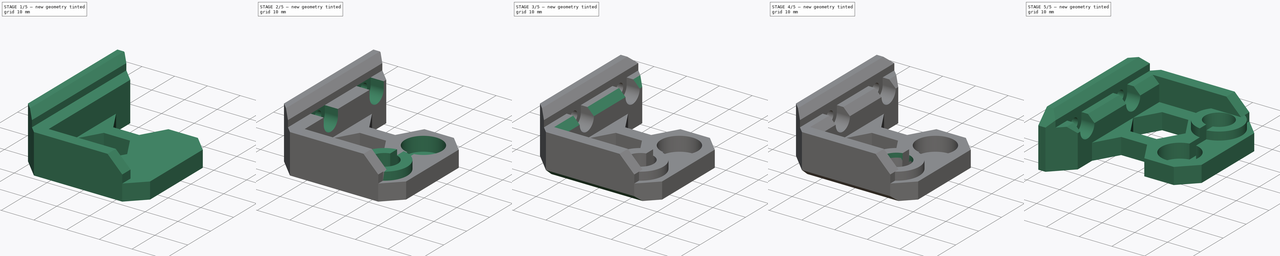
[diagram: build sequence overview — one tinted view per stage of 5, left to right]
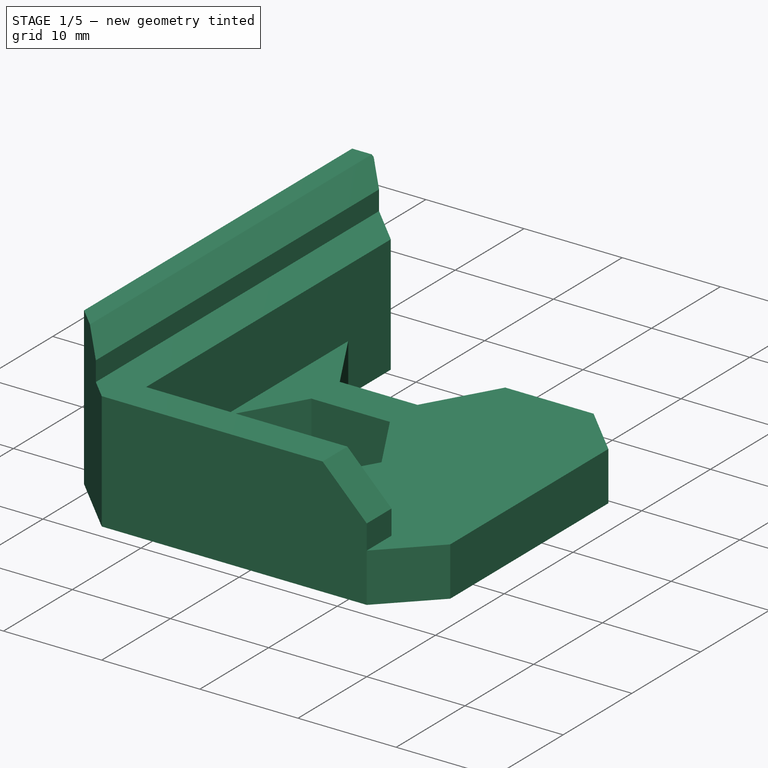
[diagram: stage 1 of 5 — iso view after this stage's code; geometry added in this stage tinted green]
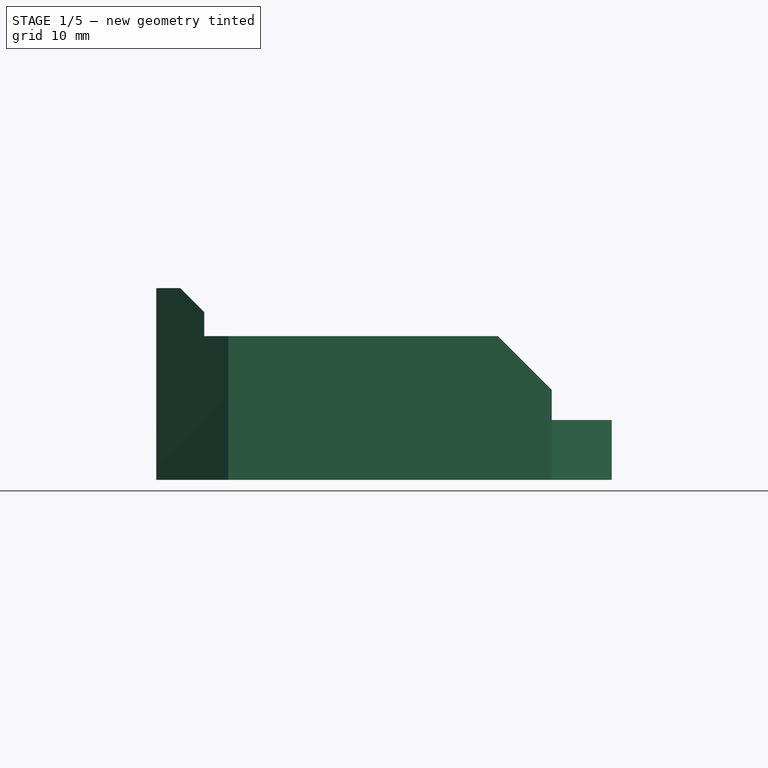
[diagram: stage 1 of 5 — front view after this stage's code; geometry added in this stage tinted green]
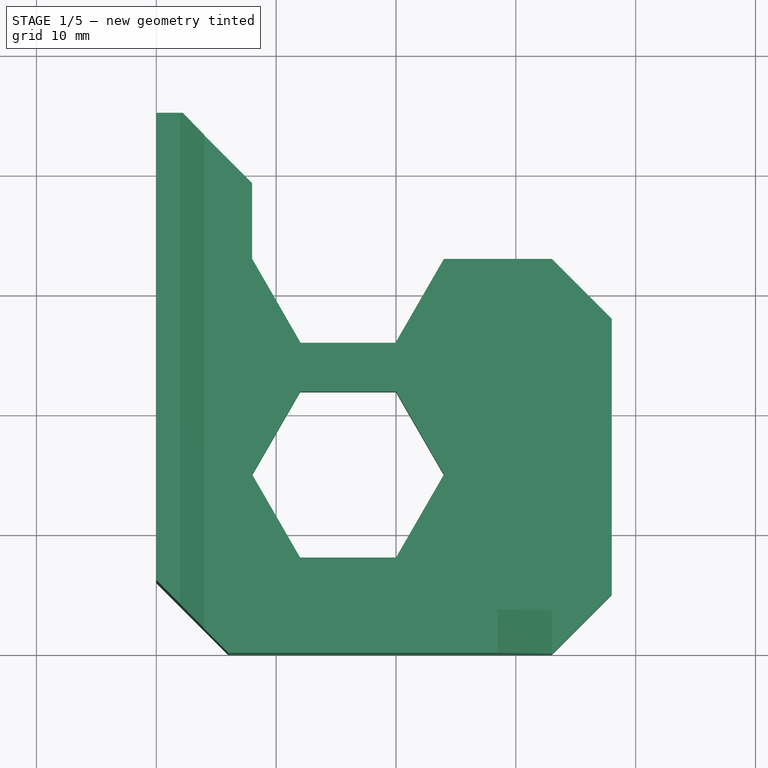
[diagram: stage 1 of 5 — top view after this stage's code; geometry added in this stage tinted green]
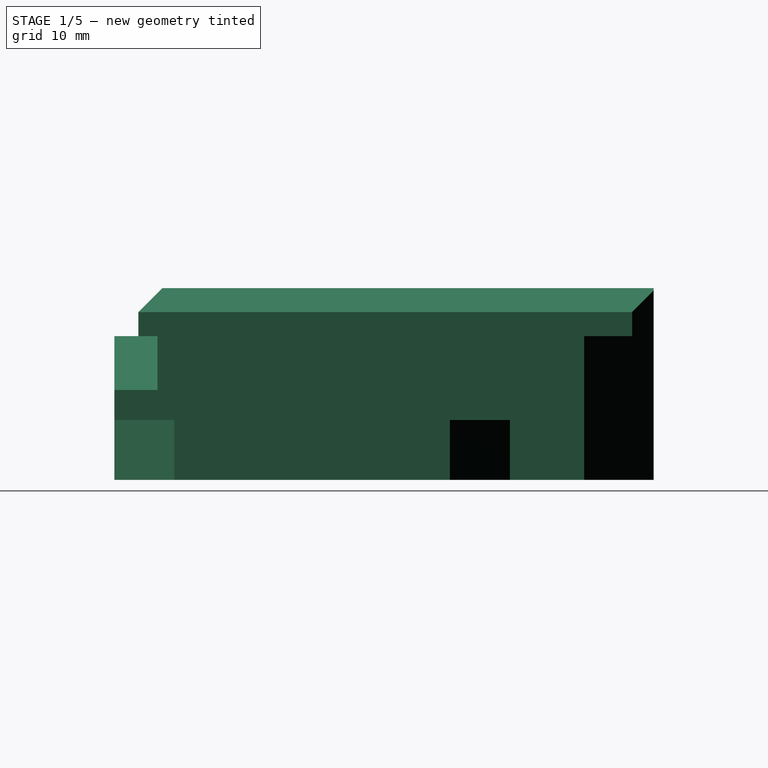
[diagram: stage 1 of 5 — right view after this stage's code; geometry added in this stage tinted green]
FCSTD DOCUMENT  (FreeCAD 0.21R33771 (Git))
Label: _Z-Axis-Top
License: Creative Commons Attribution 4.0
LicenseURL: https://creativecommons.org/licenses/by/4.0/
objects: Sketcher::SketchObject×11, PartDesign::Pocket×9, PartDesign::Chamfer×4, PartDesign::Pad×2, PartDesign::Body×2, PartDesign::FeatureBase×1, Part::Mirroring×1
note: 45 computed .brp shape members not serialized (recipe doc carries the construction recipe); baked Part::Feature solids carry a one-line shape summary decoded from their .brp

FEATURE [Sketcher::SketchObject] Sketch
  FullyConstrained = true
  MapMode = 5
  sketch-geometry (20):
    g0: LineSegment StartX=0 StartY=45 StartZ=0 EndX=2.2 EndY=45 EndZ=0
    g1: LineSegment StartX=2.2 StartY=45 StartZ=0 EndX=8 EndY=39.2 EndZ=0
    g2: LineSegment StartX=8 StartY=39.2 StartZ=0 EndX=8 EndY=33 EndZ=0
    g3: LineSegment StartX=8 StartY=33 StartZ=0 EndX=12.0415 EndY=26 EndZ=0
    g4: LineSegment StartX=12.0415 StartY=26 StartZ=0 EndX=19.9585 EndY=26 EndZ=0
    g5: LineSegment StartX=19.9585 StartY=26 StartZ=0 EndX=24 EndY=33 EndZ=0
    g6: LineSegment StartX=24 StartY=33 StartZ=0 EndX=33 EndY=33 EndZ=0
    g7: LineSegment StartX=33 StartY=33 StartZ=0 EndX=38 EndY=28 EndZ=0
    g8: LineSegment StartX=38 StartY=28 StartZ=0 EndX=38 EndY=5 EndZ=0
    g9: LineSegment StartX=38 StartY=5 StartZ=0 EndX=33 EndY=0 EndZ=0
    g10: LineSegment StartX=33 StartY=0 StartZ=0 EndX=6 EndY=0 EndZ=0
    g11: LineSegment StartX=6 StartY=0 StartZ=0 EndX=0 EndY=6 EndZ=0
    g12: LineSegment StartX=0 StartY=6 StartZ=0 EndX=0 EndY=45 EndZ=0
    g13: LineSegment StartX=20 StartY=21.9282 StartZ=0 EndX=12 EndY=21.9282 EndZ=0
    g14: LineSegment StartX=12 StartY=21.9282 StartZ=0 EndX=8 EndY=15 EndZ=0
    g15: LineSegment StartX=8 StartY=15 StartZ=0 EndX=12 EndY=8.0718 EndZ=0
    g16: LineSegment StartX=12 StartY=8.0718 StartZ=0 EndX=20 EndY=8.0718 EndZ=0
    g17: LineSegment StartX=20 StartY=8.0718 StartZ=0 EndX=24 EndY=15 EndZ=0
    g18: LineSegment StartX=24 StartY=15 StartZ=0 EndX=20 EndY=21.9282 EndZ=0
    g19: Circle CenterX=16 CenterY=15 CenterZ=0 NormalX=0 NormalY=0 NormalZ=1 AngleXU=0 Radius=8
  constraints (56):
    c: PointOnObject(g0,g-2)
    c: Horizontal(g0)
    c: Coincident(g0,g1)
    c: Coincident(g1,g2)
    c: Coincident(g2,g3)
    c: Coincident(g3,g4)
    c: Horizontal(g4)
    c: Coincident(g4,g5)
    c: Coincident(g5,g6)
    c: Horizontal(g6)
    c: Coincident(g6,g7)
    c: Coincident(g7,g8)
    c: Vertical(g8)
    c: Coincident(g8,g9)
    c: PointOnObject(g9,g-1)
    c: Coincident(g9,g10)
    c: PointOnObject(g10,g-1)
    c: Coincident(g10,g11)
    c: PointOnObject(g11,g-2)
    c: Coincident(g11,g12)
    c: Coincident(g12,g0)
    c: DistanceY(g-1,g0) = 45
    c: DistanceX(g-1,g8) = 38
    c: Angle(g9,g-1) = 2.35619
    c: DistanceY(g9,g8) = 5
    c: DistanceY(g9,g6) = 33
    c: Perpendicular(g7,g9)
    c: Equal(g9,g7)
    c: Parallel(g7,g1)
    c: Vertical(g2)
    c: DistanceX(g0,g1) = 8
    c: DistanceY(g1,g0) = 5.8
    c: Parallel(g1,g11)
    c: DistanceY(g10,g11) = 6
    c: DistanceY(g4,g6) = 7
    c: Horizontal(g2,g5)
    c: Angle(g5,g3) = 1.0472
    c: Equal(g3,g5)
    c: DistanceX(g6,g6) = 9
    c: Coincident(g13,g14)
    c: Coincident(g14,g15)
    c: Coincident(g15,g16)
    c: Coincident(g16,g17)
    c: Coincident(g17,g18)
    c: Coincident(g18,g13)
    c: Equal(g13, g14-g18) x5
    c: PointOnObject(g13,g19)
    c: PointOnObject(g14,g19)
    c: PointOnObject(g15,g19)
    c: PointOnObject(g16,g19)
    c: PointOnObject(g17,g19)
    c: PointOnObject(g18,g19)
    c: Horizontal(g13)
    c: DistanceX(g-1,g19) = 16
    c: DistanceY(g-1,g19) = 15
    c: Diameter(g19) = 16
FEATURE [PartDesign::Pad] Pad
  Direction = (0,0,1)
  Length = 16
  Length2 = 10
  Profile = -> Sketch
  ReferenceAxis = -> Sketch [N_Axis]
  Refine = true
  Type = 0
FEATURE [Sketcher::SketchObject] Sketch001
  FullyConstrained = true
  MapMode = 5
  Placement = pos=(0,0,0) rot=(1,0,0;1.5708rad)
  sketch-geometry (10):
    g0: LineSegment StartX=0 StartY=16 StartZ=0 EndX=2 EndY=16 EndZ=0
    g1: LineSegment StartX=2 StartY=16 StartZ=0 EndX=4 EndY=14 EndZ=0
    g2: LineSegment StartX=4 StartY=14 StartZ=0 EndX=4 EndY=12 EndZ=0
    g3: LineSegment StartX=4 StartY=12 StartZ=0 EndX=28.5 EndY=12 EndZ=0
    g4: LineSegment StartX=28.5 StartY=12 StartZ=0 EndX=33 EndY=7.5 EndZ=0
    g5: LineSegment StartX=33 StartY=7.5 StartZ=0 EndX=33 EndY=5 EndZ=0
    g6: LineSegment StartX=33 StartY=5 StartZ=0 EndX=39 EndY=5 EndZ=0
    g7: LineSegment StartX=39 StartY=5 StartZ=0 EndX=39 EndY=17 EndZ=0
    g8: LineSegment StartX=39 StartY=17 StartZ=0 EndX=0 EndY=17 EndZ=0
    g9: LineSegment StartX=0 StartY=17 StartZ=0 EndX=0 EndY=16 EndZ=0
  constraints (30):
    c: PointOnObject(g0,g-2)
    c: Horizontal(g0)
    c: Coincident(g0,g1)
    c: Coincident(g1,g2)
    c: Vertical(g2)
    c: Coincident(g2,g3)
    c: Horizontal(g3)
    c: Coincident(g3,g4)
    c: Coincident(g4,g5)
    c: Coincident(g5,g6)
    c: Horizontal(g6)
    c: Coincident(g6,g7)
    c: Vertical(g7)
    c: Coincident(g7,g8)
    c: PointOnObject(g8,g-2)
    c: Horizontal(g8)
    c: Coincident(g8,g9)
    c: Coincident(g9,g0)
    c: DistanceY(g-1,g0) = 16
    c: DistanceY(g-1,g8) = 17
    c: Vertical(g5)
    c: DistanceY(g-1,g6) = 5
    c: DistanceX(g-1,g6) = 39
    c: Angle(g0,g1) = 2.35619
    c: DistanceX(g0,g1) = 4
    c: DistanceY(g1,g0) = 2
    c: DistanceY(g-1,g3) = 12
    c: DistanceX(g-1,g5) = 33
    c: Parallel(g1,g4)
    c: DistanceY(g4,g3) = 4.5
FEATURE [PartDesign::Pocket] Pocket
  BaseFeature = -> Pad
  Direction = (0,1,-2e-16)
  Length = 5
  Length2 = 5
  Profile = -> Sketch001
  ReferenceAxis = -> Sketch001 [N_Axis]
  Refine = true
  Type = 1
FEATURE [Sketcher::SketchObject] Sketch002
  AttachmentOffset = pos=(0,0,5) rot=(0,0,1;0rad)
  FullyConstrained = true
  MapMode = 5
  Placement = pos=(0,0,5) rot=(0,0,1;0rad)
  sketch-geometry (6):
    g0: LineSegment StartX=8 StartY=45 StartZ=0 EndX=8 EndY=3.6 EndZ=0
    g1: LineSegment StartX=8 StartY=3.6 StartZ=0 EndX=33 EndY=3.6 EndZ=0
    g2: LineSegment StartX=33 StartY=3.6 StartZ=0 EndX=33 EndY=-1 EndZ=0
    g3: LineSegment StartX=33 StartY=-1 StartZ=0 EndX=39 EndY=-1 EndZ=0
    g4: LineSegment StartX=39 StartY=-1 StartZ=0 EndX=39 EndY=45 EndZ=0
    g5: LineSegment StartX=39 StartY=45 StartZ=0 EndX=8 EndY=45 EndZ=0
  constraints (18):
    c: Vertical(g0)
    c: Coincident(g0,g1)
    c: Horizontal(g1)
    c: Coincident(g1,g2)
    c: Vertical(g2)
    c: Coincident(g2,g3)
    c: Horizontal(g3)
    c: Coincident(g3,g4)
    c: Vertical(g4)
    c: Coincident(g4,g5)
    c: Coincident(g5,g0)
    c: Horizontal(g5)
    c: DistanceX(g-1,g0) = 8
    c: DistanceX(g-1,g2) = 33
    c: DistanceY(g3,g-1) = 1
    c: DistanceY(g2,g2) = 4.6
    c: DistanceX(g-1,g3) = 39
    c: DistanceY(g-1,g0) = 45
FEATURE [PartDesign::Pocket] Pocket001
  BaseFeature = -> Pocket
  Direction = (0,0,-1)
  Length = 5
  Length2 = 5
  Profile = -> Sketch002
  ReferenceAxis = -> Sketch002 [N_Axis]
  Refine = true
  Reversed = true
  Type = 1
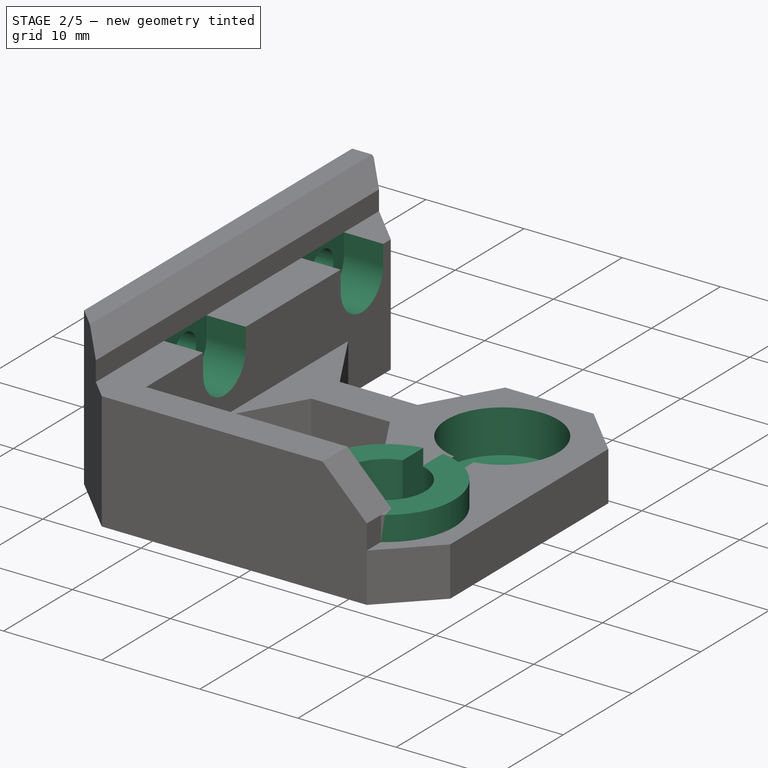
[diagram: stage 2 of 5 — iso view after this stage's code; geometry added in this stage tinted green]
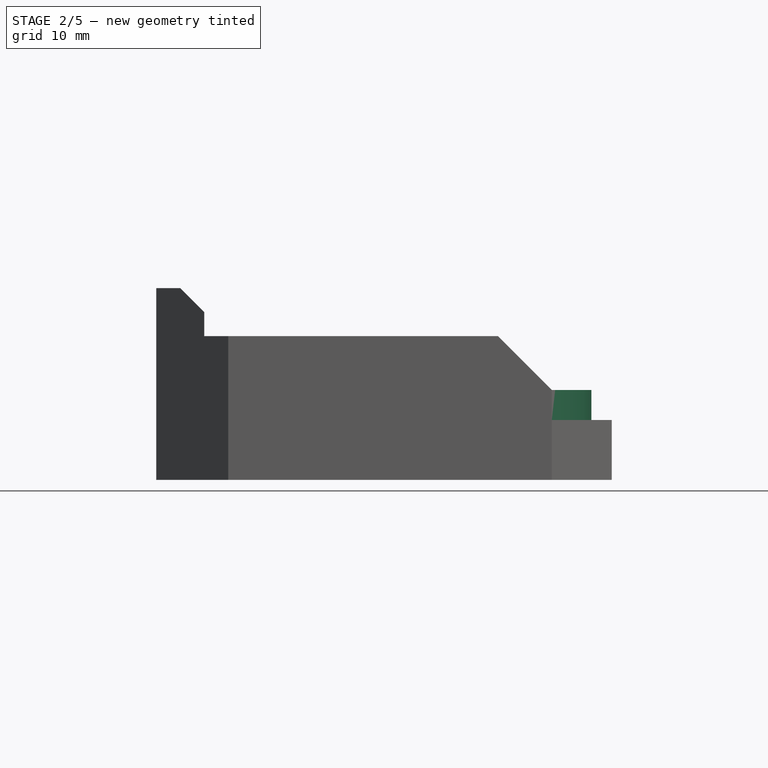
[diagram: stage 2 of 5 — front view after this stage's code; geometry added in this stage tinted green]
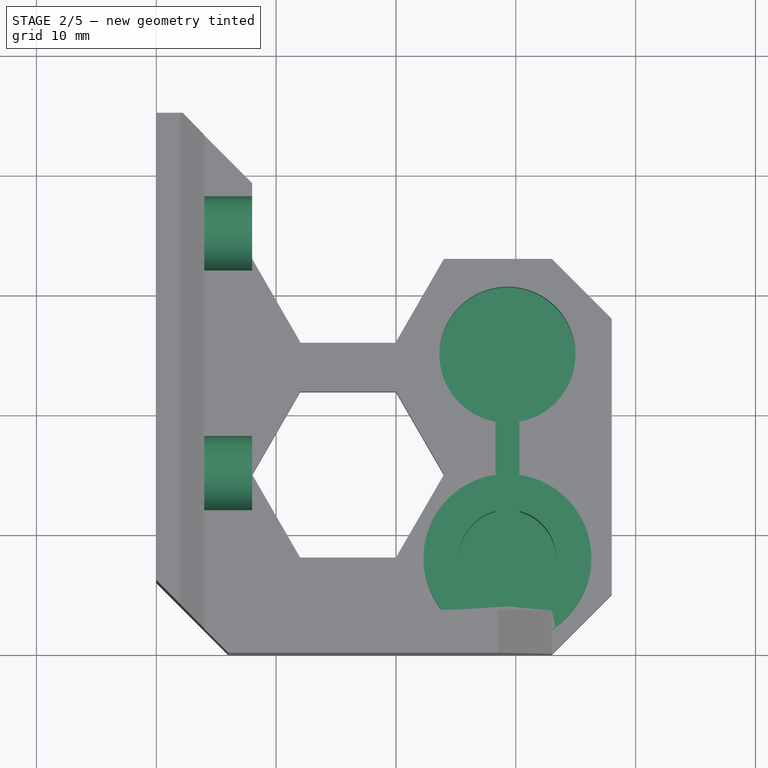
[diagram: stage 2 of 5 — top view after this stage's code; geometry added in this stage tinted green]
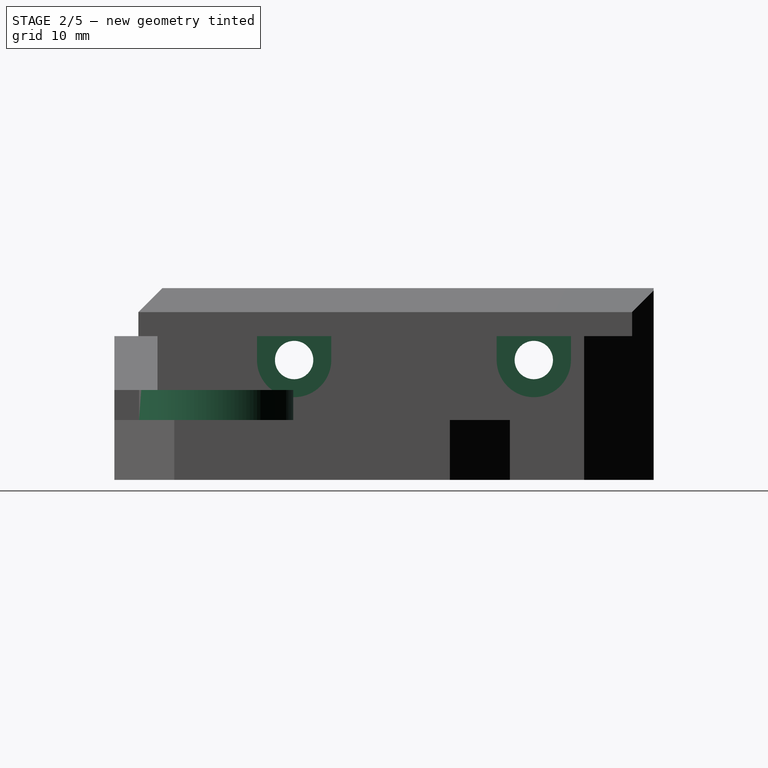
[diagram: stage 2 of 5 — right view after this stage's code; geometry added in this stage tinted green]
FEATURE [Sketcher::SketchObject] Sketch003
  AttachmentOffset = pos=(0,0,5) rot=(0,0,1;0rad)
  FullyConstrained = true
  MapMode = 5
  Placement = pos=(0,0,5) rot=(0,0,1;0rad)
  sketch-geometry (1):
    g0: Circle CenterX=29.3 CenterY=8 CenterZ=0 NormalX=0 NormalY=0 NormalZ=1 AngleXU=0 Radius=7
  constraints (3):
    c: DistanceY(g-1,g0) = 8
    c: DistanceX(g-1,g0) = 29.3
    c: Diameter(g0) = 14
FEATURE [PartDesign::Pad] Pad001
  BaseFeature = -> Pocket001
  Direction = (0,0,1)
  Length = 2.5
  Length2 = 10
  Profile = -> Sketch003
  ReferenceAxis = -> Sketch003 [N_Axis]
  Refine = true
  Type = 0
FEATURE [Sketcher::SketchObject] Sketch004
  AttachmentOffset = pos=(0,0,7.5) rot=(0,0,1;0rad)
  FullyConstrained = true
  MapMode = 5
  Placement = pos=(0,0,7.5) rot=(0,0,1;0rad)
  sketch-geometry (5):
    g0: ArcOfCircle CenterX=29.3 CenterY=25 CenterZ=0 NormalX=0 NormalY=0 NormalZ=1 AngleXU=0 Radius=5.675 StartAngle=4.88953 EndAngle=10.8184
    g1: ArcOfCircle CenterX=29.3 CenterY=8 CenterZ=0 NormalX=0 NormalY=0 NormalZ=1 AngleXU=0 Radius=4.05 StartAngle=1.82029 EndAngle=7.60449
    g2: LineSegment StartX=28.3 StartY=19.4138 StartZ=0 EndX=28.3 EndY=11.9246 EndZ=0
    g3: LineSegment StartX=30.3 StartY=19.4138 StartZ=0 EndX=30.3 EndY=11.9246 EndZ=0
    g4: LineSegment StartX=29.3 StartY=25 StartZ=0 EndX=29.3 EndY=8 EndZ=0
  constraints (16):
    c: DistanceX(g-1,g1) = 29.3
    c: DistanceY(g-1,g1) = 8
    c: Vertical(g1,g0)
    c: Diameter(g1) = 8.1
    c: DistanceY(g1,g0) = 17
    c: Diameter(g0) = 11.35
    c: Vertical(g2)
    c: Vertical(g3)
    c: Coincident(g4,g0)
    c: Coincident(g4,g1)
    c: Symmetric(g2,g3,g4)
    c: Coincident(g0,g2)
    c: Coincident(g0,g3)
    c: Coincident(g1,g2)
    c: PointOnObject(g1,g3)
    c: DistanceX(g0,g0) = 2
FEATURE [PartDesign::Pocket] Pocket002
  BaseFeature = -> Pad001
  Direction = (0,0,-1)
  Length = 6.9
  Length2 = 5
  Profile = -> Sketch004
  ReferenceAxis = -> Sketch004 [N_Axis]
  Refine = true
  Type = 0
FEATURE [Sketcher::SketchObject] Sketch005
  FullyConstrained = true
  MapMode = 5
  Placement = pos=(0,0,0) rot=(0.57735,0.57735,0.57735;2.0944rad)
  Support = -> [YZ_Plane]
  sketch-geometry (2):
    g0: Circle CenterX=15 CenterY=10 CenterZ=0 NormalX=0 NormalY=0 NormalZ=1 AngleXU=0 Radius=1.6
    g1: Circle CenterX=35 CenterY=10 CenterZ=0 NormalX=0 NormalY=0 NormalZ=1 AngleXU=0 Radius=1.6
  constraints (6):
    c: Horizontal(g1,g0)
    c: DistanceX(g0,g1) = 20
    c: DistanceX(g-1,g0) = 15
    c: DistanceY(g-1,g1) = 10
    c: Equal(g0,g1)
    c: Diameter(g0) = 3.2
FEATURE [PartDesign::Pocket] Pocket003
  BaseFeature = -> Pocket002
  Direction = (-1,2e-16,-3e-16)
  Length = 5
  Length2 = 5
  Profile = -> Sketch005
  ReferenceAxis = -> Sketch005 [N_Axis]
  Refine = true
  Reversed = true
  Type = 1
FEATURE [Sketcher::SketchObject] Sketch006
  AttachmentOffset = pos=(0,0,8) rot=(0,0,1;0rad)
  ExternalGeometry = -> [Sketch005]
  FullyConstrained = true
  MapMode = 5
  Placement = pos=(8,-1.8e-15,1.8e-15) rot=(0.57735,0.57735,0.57735;2.0944rad)
  Support = -> [YZ_Plane]
  sketch-geometry (8):
    g0: ArcOfCircle CenterX=15 CenterY=10 CenterZ=0 NormalX=0 NormalY=0 NormalZ=1 AngleXU=0 Radius=3.1 StartAngle=3.14159 EndAngle=6.28319
    g1: ArcOfCircle CenterX=35 CenterY=10 CenterZ=0 NormalX=0 NormalY=0 NormalZ=1 AngleXU=0 Radius=3.1 StartAngle=3.14159 EndAngle=6.28319
    g2: LineSegment StartX=11.9 StartY=10 StartZ=0 EndX=11.9 EndY=16 EndZ=0
    g3: LineSegment StartX=11.9 StartY=16 StartZ=0 EndX=18.1 EndY=16 EndZ=0
    g4: LineSegment StartX=18.1 StartY=16 StartZ=0 EndX=18.1 EndY=10 EndZ=0
    g5: LineSegment StartX=31.9 StartY=10 StartZ=0 EndX=31.9 EndY=16 EndZ=0
    g6: LineSegment StartX=31.9 StartY=16 StartZ=0 EndX=38.1 EndY=16 EndZ=0
    g7: LineSegment StartX=38.1 StartY=16 StartZ=0 EndX=38.1 EndY=10 EndZ=0
  constraints (20):
    c: Coincident(g0,g-3)
    c: Coincident(g1,g-4)
    c: Tangent(g0,g2) = 1.5708
    c: Coincident(g2,g3)
    c: Horizontal(g3)
    c: Coincident(g3,g4)
    c: Tangent(g1,g5) = 1.5708
    c: Coincident(g5,g6)
    c: Horizontal(g6)
    c: Coincident(g6,g7)
    c: Vertical(g7)
    c: Vertical(g5)
    c: Vertical(g4)
    c: Vertical(g2)
    c: Horizontal(g3,g5)
    c: Equal(g0,g1)
    c: Tangent(g7,g1) = 1.5708
    c: Tangent(g4,g0) = 1.5708
    c: DistanceX(g3,g3) = 6.2
    c: DistanceY(g0,g2) = 6
FEATURE [PartDesign::Pocket] Pocket004
  BaseFeature = -> Pocket003
  Direction = (-1,2e-16,-3e-16)
  Length = 4
  Length2 = 5
  Profile = -> Sketch006
  ReferenceAxis = -> Sketch006 [N_Axis]
  Refine = true
  Type = 0
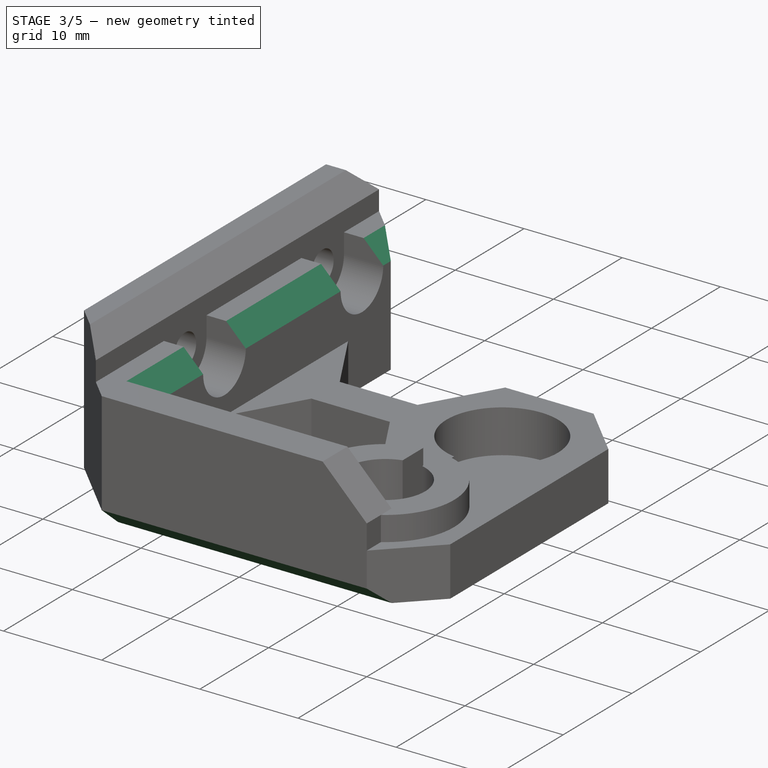
[diagram: stage 3 of 5 — iso view after this stage's code; geometry added in this stage tinted green]
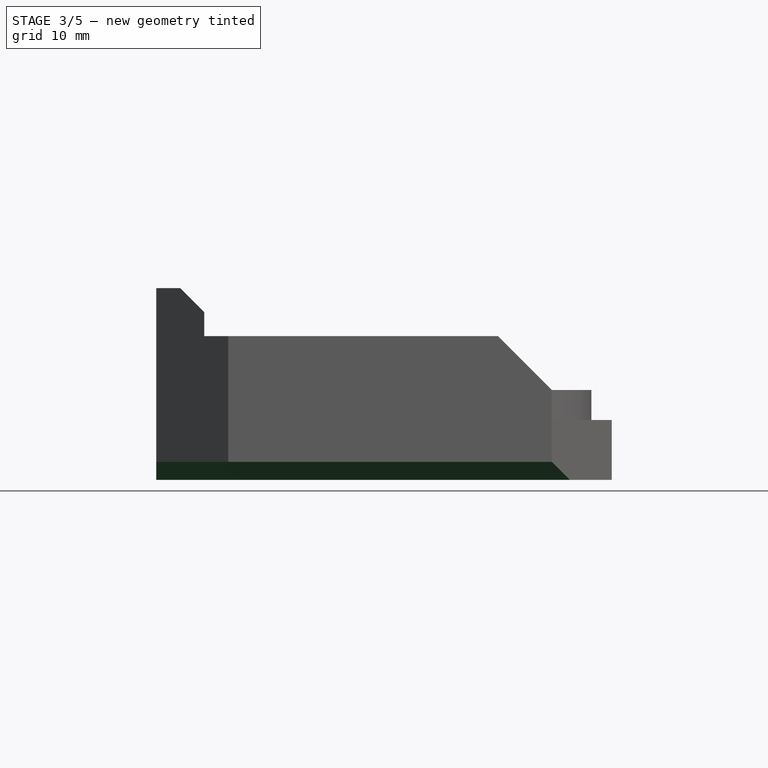
[diagram: stage 3 of 5 — front view after this stage's code; geometry added in this stage tinted green]
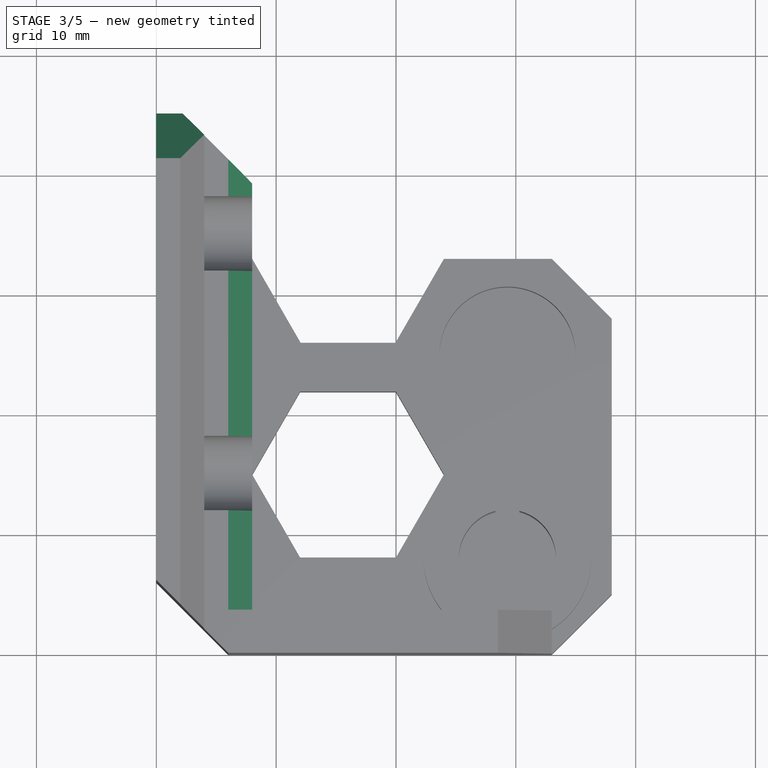
[diagram: stage 3 of 5 — top view after this stage's code; geometry added in this stage tinted green]
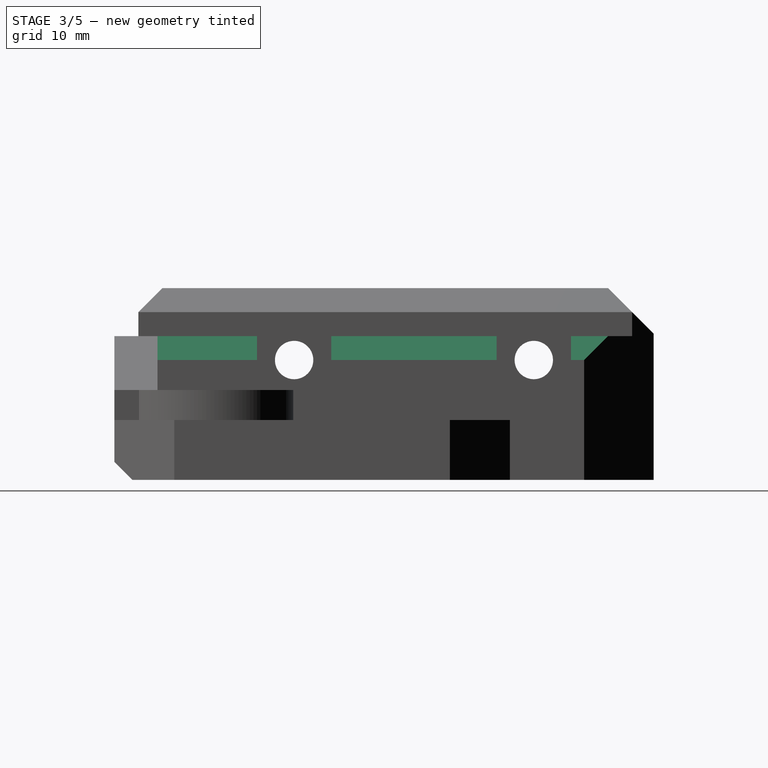
[diagram: stage 3 of 5 — right view after this stage's code; geometry added in this stage tinted green]
FEATURE [PartDesign::Chamfer] Chamfer
  Angle = 45
  Base = -> Pocket004 [Edge40,Edge44,Edge48]
  BaseFeature = -> Pocket004
  ChamferType = 0
  FlipDirection = false
  Refine = true
  Size = 2
  Size2 = 1
  SupportTransform = false
  UseAllEdges = false
FEATURE [PartDesign::Chamfer] Chamfer001
  Angle = 45
  Base = -> Chamfer [Edge40]
  BaseFeature = -> Chamfer
  ChamferType = 0
  FlipDirection = false
  Refine = true
  Size = 3.79
  Size2 = 1
  SupportTransform = false
  UseAllEdges = false
FEATURE [PartDesign::Chamfer] Chamfer002
  Angle = 45
  Base = -> Chamfer001 [Edge24,Edge23]
  BaseFeature = -> Chamfer001
  ChamferType = 0
  FlipDirection = false
  Refine = true
  Size = 1.5
  Size2 = 1
  SupportTransform = false
  UseAllEdges = false
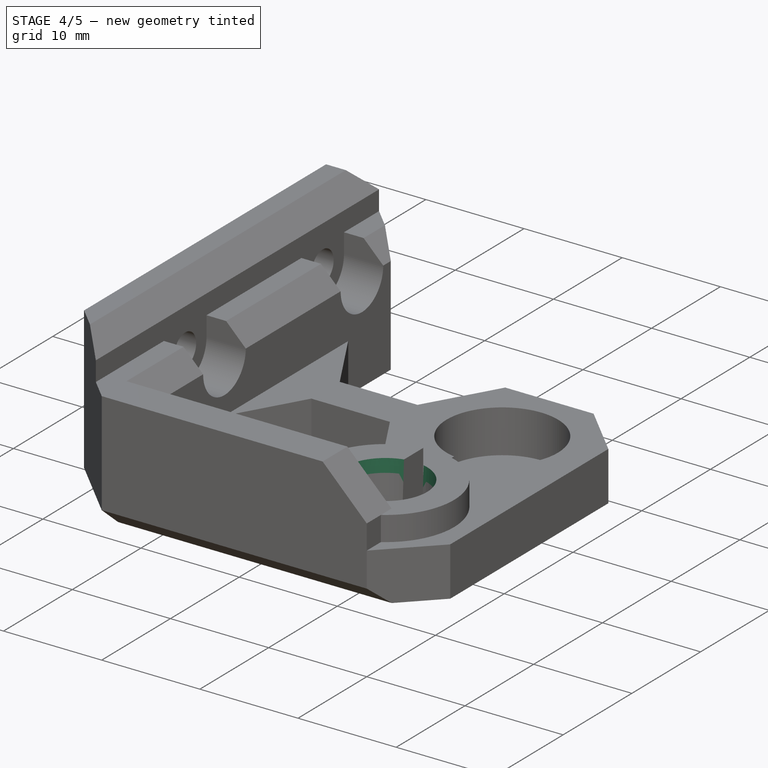
[diagram: stage 4 of 5 — iso view after this stage's code; geometry added in this stage tinted green]
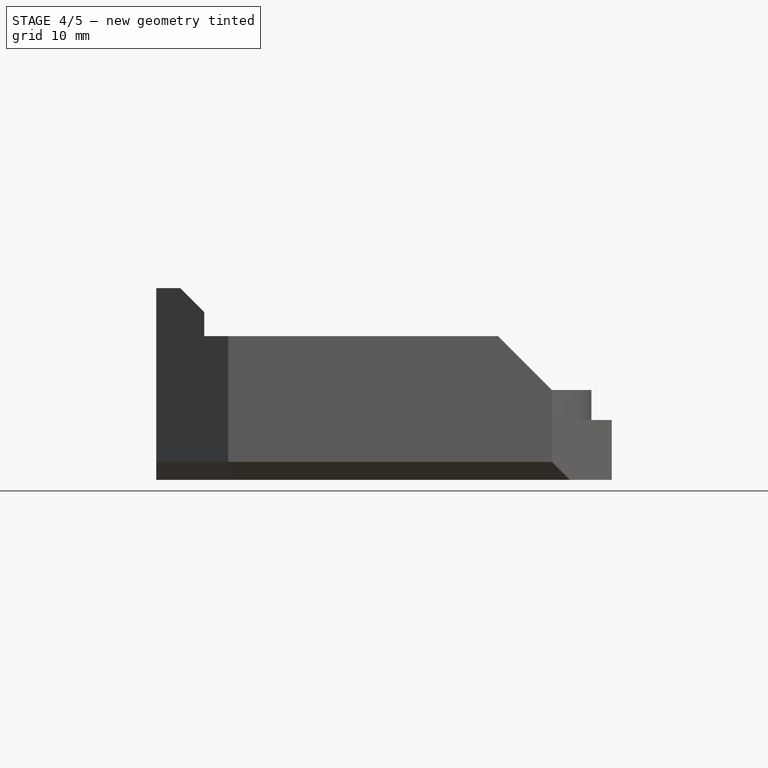
[diagram: stage 4 of 5 — front view after this stage's code; geometry added in this stage tinted green]
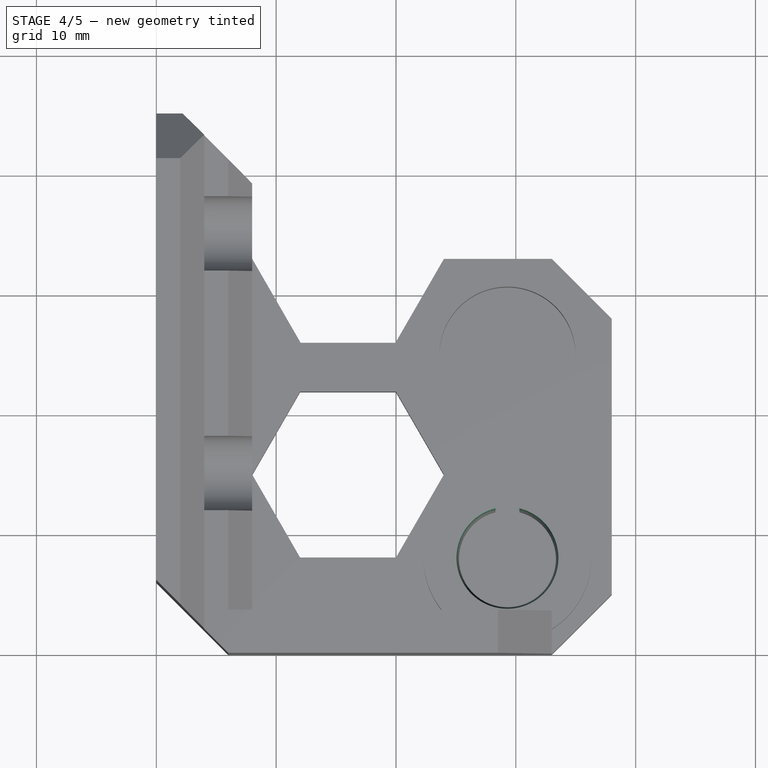
[diagram: stage 4 of 5 — top view after this stage's code; geometry added in this stage tinted green]
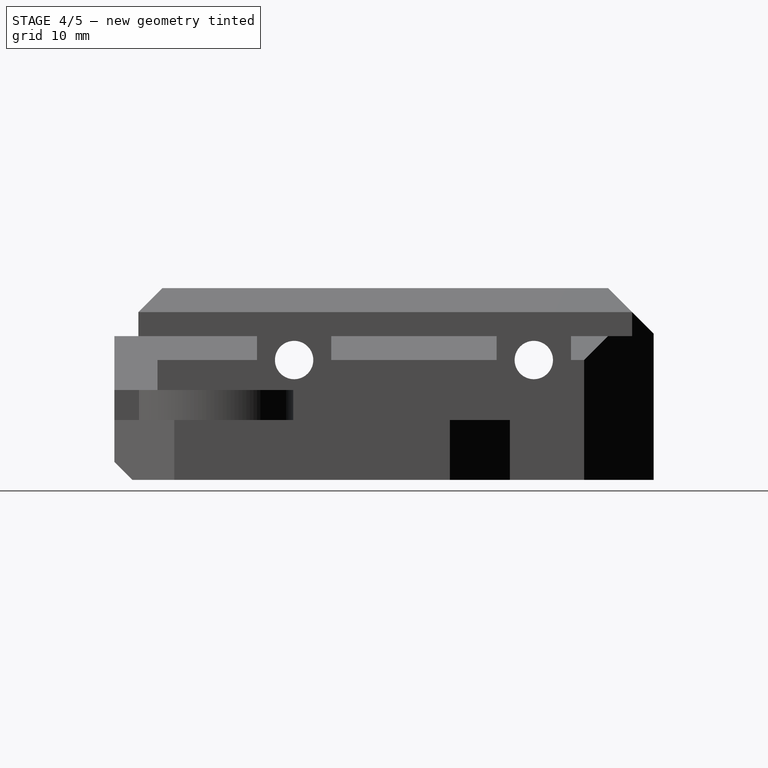
[diagram: stage 4 of 5 — right view after this stage's code; geometry added in this stage tinted green]
FEATURE [PartDesign::Chamfer] Chamfer003
  Angle = 45
  Base = -> Chamfer002 [Edge146]
  BaseFeature = -> Chamfer002
  ChamferType = 1
  FlipDirection = false
  Refine = true
  Size = 0.2
  Size2 = 4
  SupportTransform = false
  UseAllEdges = false
FEATURE [Sketcher::SketchObject] Sketch007
  AttachmentOffset = pos=(0,0,1.5) rot=(0,0,1;0rad)
  FullyConstrained = true
  MapMode = 5
  Placement = pos=(1.5,-3e-16,3e-16) rot=(0.57735,0.57735,0.57735;2.0944rad)
  Support = -> [YZ_Plane]
  sketch-geometry (4):
    g0: LineSegment StartX=24 StartY=4 StartZ=0 EndX=24.1 EndY=4 EndZ=0
    g1: LineSegment StartX=24.1 StartY=4 StartZ=0 EndX=24.1 EndY=0.5 EndZ=0
    g2: LineSegment StartX=24.1 StartY=0.5 StartZ=0 EndX=24 EndY=0.5 EndZ=0
    g3: LineSegment StartX=24 StartY=0.5 StartZ=0 EndX=24 EndY=4 EndZ=0
  constraints (12):
    c: Coincident(g0,g1)
    c: Coincident(g1,g2)
    c: Coincident(g2,g3)
    c: Coincident(g3,g0)
    c: Horizontal(g0)
    c: Horizontal(g2)
    c: Vertical(g1)
    c: Vertical(g3)
    c: DistanceX(g0,g0) = 0.1
    c: DistanceY(g1,g1) = 3.5
    c: DistanceY(g-1,g1) = 0.5
    c: DistanceX(g-1,g1) = 24.1
FEATURE [Sketcher::SketchObject] Sketch008
  AttachmentOffset = pos=(0,0,3) rot=(0,0,1;0rad)
  FullyConstrained = true
  MapMode = 5
  Placement = pos=(3,-7e-16,7e-16) rot=(0.57735,0.57735,0.57735;2.0944rad)
  Support = -> [YZ_Plane]
  sketch-geometry (4):
    g0: LineSegment StartX=6 StartY=4 StartZ=0 EndX=6.1 EndY=4 EndZ=0
    g1: LineSegment StartX=6.1 StartY=4 StartZ=0 EndX=6.1 EndY=0.5 EndZ=0
    g2: LineSegment StartX=6.1 StartY=0.5 StartZ=0 EndX=6 EndY=0.5 EndZ=0
    g3: LineSegment StartX=6 StartY=0.5 StartZ=0 EndX=6 EndY=4 EndZ=0
  constraints (12):
    c: Coincident(g0,g1)
    c: Coincident(g1,g2)
    c: Coincident(g2,g3)
    c: Coincident(g3,g0)
    c: Horizontal(g0)
    c: Horizontal(g2)
    c: Vertical(g1)
    c: Vertical(g3)
    c: DistanceX(g-1,g2) = 6
    c: DistanceY(g1,g1) = 3.5
    c: DistanceX(g0,g0) = 0.1
    c: DistanceY(g-1,g2) = 0.5
FEATURE [PartDesign::Pocket] Pocket005
  BaseFeature = -> Chamfer003
  Direction = (-1,2e-16,-3e-16)
  Length = 21
  Length2 = 5
  Profile = -> Sketch007
  ReferenceAxis = -> Sketch007 [N_Axis]
  Refine = true
  Reversed = true
  Type = 0
FEATURE [PartDesign::Pocket] Pocket006
  BaseFeature = -> Pocket005
  Direction = (-1,2e-16,-3e-16)
  Length = 18
  Length2 = 5
  Profile = -> Sketch008
  ReferenceAxis = -> Sketch008 [N_Axis]
  Refine = true
  Reversed = true
  Type = 0
FEATURE [Sketcher::SketchObject] Sketch009
  AttachmentOffset = pos=(0,0,10) rot=(0,0,1;0rad)
  FullyConstrained = true
  MapMode = 5
  Placement = pos=(10,-2.2e-15,2.2e-15) rot=(0.57735,0.57735,0.57735;2.0944rad)
  Support = -> [YZ_Plane]
  sketch-geometry (4):
    g0: LineSegment StartX=2 StartY=4 StartZ=0 EndX=2.1 EndY=4 EndZ=0
    g1: LineSegment StartX=2.1 StartY=4 StartZ=0 EndX=2.1 EndY=0.5 EndZ=0
    g2: LineSegment StartX=2.1 StartY=0.5 StartZ=0 EndX=2 EndY=0.5 EndZ=0
    g3: LineSegment StartX=2 StartY=0.5 StartZ=0 EndX=2 EndY=4 EndZ=0
  constraints (12):
    c: Coincident(g0,g1)
    c: Coincident(g1,g2)
    c: Coincident(g2,g3)
    c: Coincident(g3,g0)
    c: Horizontal(g0)
    c: Horizontal(g2)
    c: Vertical(g1)
    c: Vertical(g3)
    c: DistanceX(g-1,g2) = 2
    c: DistanceY(g1,g1) = 3.5
    c: DistanceX(g0,g0) = 0.1
    c: DistanceY(g-1,g2) = 0.5
FEATURE [PartDesign::Pocket] Pocket007
  BaseFeature = -> Pocket006
  Direction = (-1,2e-16,-3e-16)
  Length = 22
  Length2 = 5
  Profile = -> Sketch009
  ReferenceAxis = -> Sketch009 [N_Axis]
  Refine = true
  Reversed = true
  Type = 0
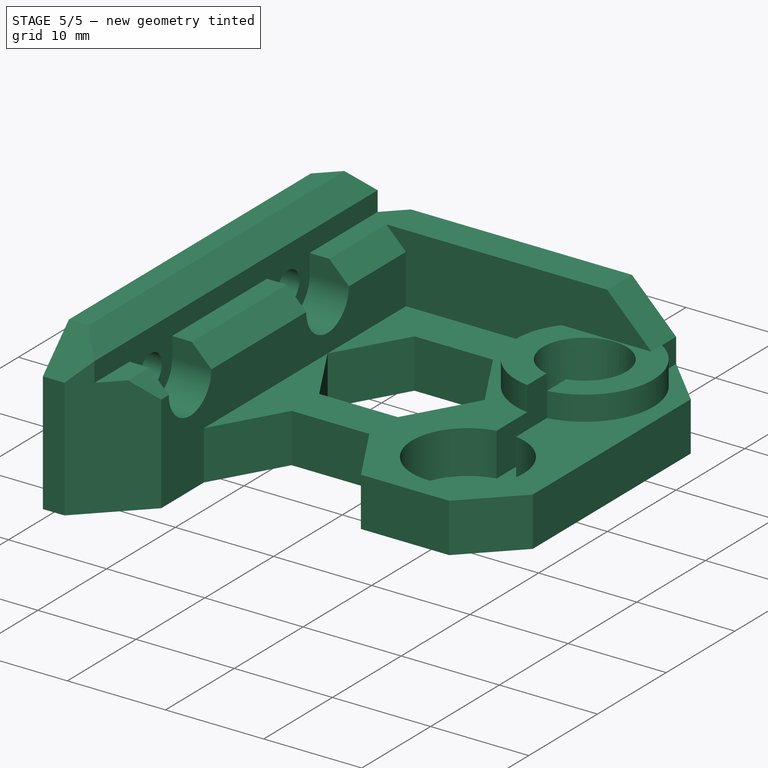
[diagram: stage 5 of 5 — iso view after this stage's code; geometry added in this stage tinted green]
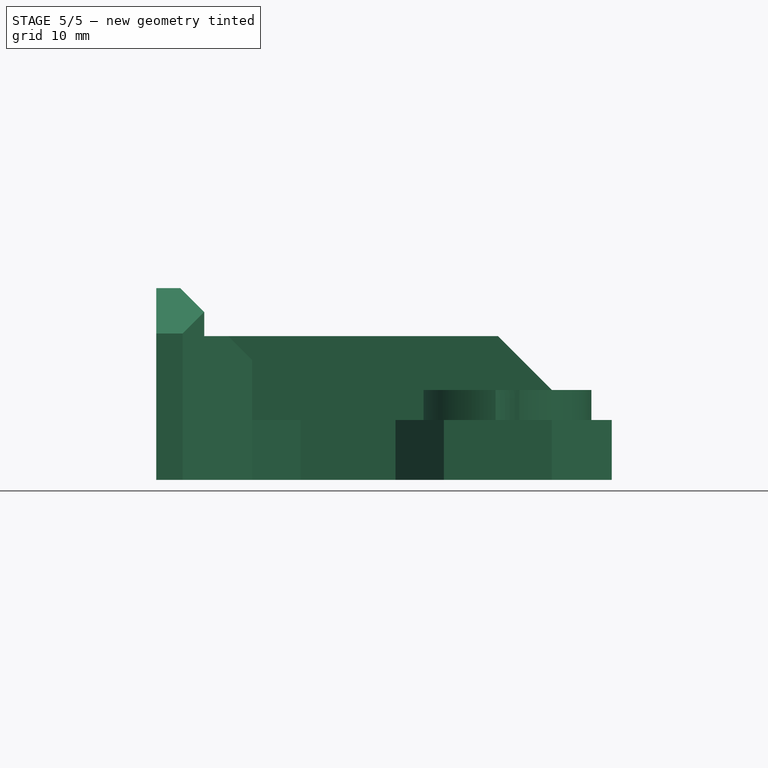
[diagram: stage 5 of 5 — front view after this stage's code; geometry added in this stage tinted green]
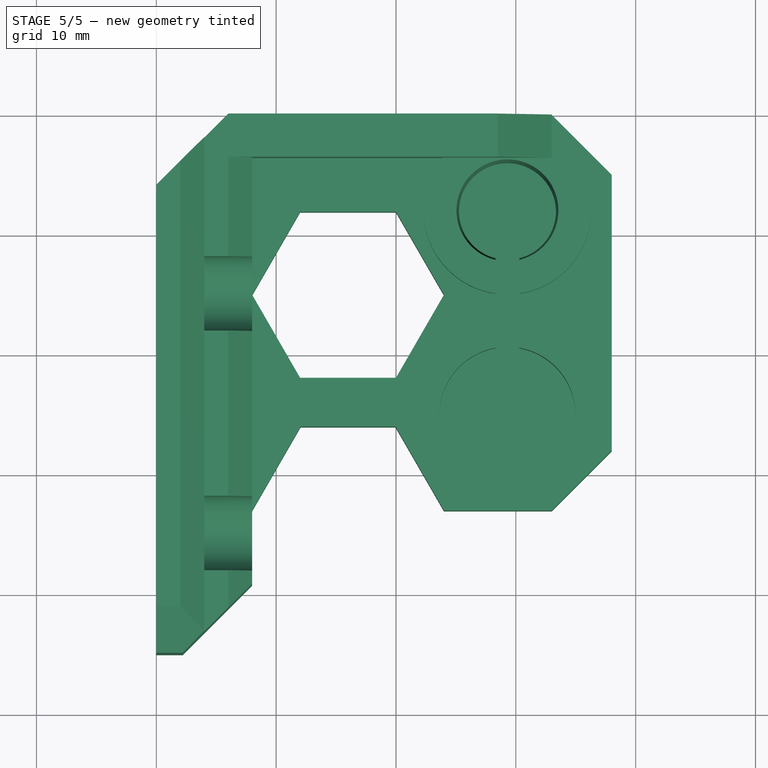
[diagram: stage 5 of 5 — top view after this stage's code; geometry added in this stage tinted green]
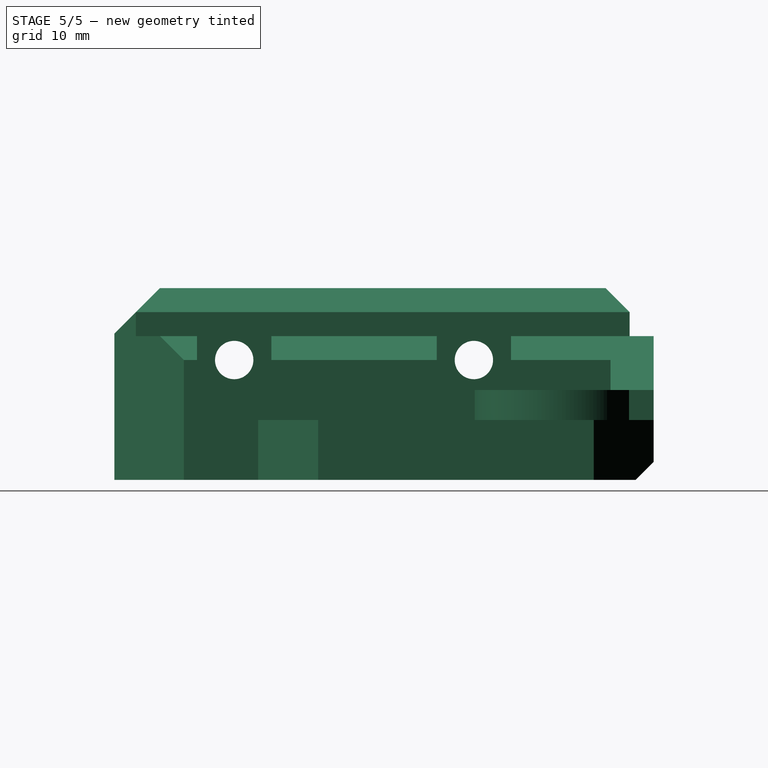
[diagram: stage 5 of 5 — right view after this stage's code; geometry added in this stage tinted green]
FEATURE [Sketcher::SketchObject] Sketch010
  AttachmentOffset = pos=(0,0,-6.5) rot=(0,0,1;0rad)
  FullyConstrained = true
  MapMode = 5
  Placement = pos=(0,6.5,1.4e-15) rot=(1,0,0;1.5708rad)
  Support = -> [XZ_Plane]
  sketch-geometry (4):
    g0: LineSegment StartX=36.5 StartY=4 StartZ=0 EndX=36.6 EndY=4 EndZ=0
    g1: LineSegment StartX=36.6 StartY=4 StartZ=0 EndX=36.6 EndY=0.5 EndZ=0
    g2: LineSegment StartX=36.6 StartY=0.5 StartZ=0 EndX=36.5 EndY=0.5 EndZ=0
    g3: LineSegment StartX=36.5 StartY=0.5 StartZ=0 EndX=36.5 EndY=4 EndZ=0
  constraints (12):
    c: Coincident(g0,g1)
    c: Coincident(g1,g2)
    c: Coincident(g2,g3)
    c: Coincident(g3,g0)
    c: Horizontal(g0)
    c: Horizontal(g2)
    c: Vertical(g1)
    c: Vertical(g3)
    c: DistanceY(g-1,g1) = 0.5
    c: DistanceX(g-1,g1) = 36.6
    c: DistanceY(g3,g3) = 3.5
    c: DistanceX(g0,g0) = 0.1
FEATURE [PartDesign::Pocket] Pocket008
  BaseFeature = -> Pocket007
  Direction = (0,1,2e-16)
  Length = 20
  Length2 = 5
  Profile = -> Sketch010
  ReferenceAxis = -> Sketch010 [N_Axis]
  Refine = true
  Type = 0
FEATURE [PartDesign::Body] Body  label="Z-Axis-Top_R"
  Group = -> [Sketch,Pad,Sketch001,Pocket,Sketch002,Pocket001,Sketch003,Pad001,Sketch004,Pocket002,Sketch005,Pocket003,Sketch006,Pocket004,Chamfer,Chamfer001,Chamfer002,Chamfer003,Sketch007,Sketch008,Pocket005,Pocket006,Sketch009,Pocket007,Sketch010,Pocket008]
  Origin = -> Origin
  Tip = -> Pocket008
FEATURE [PartDesign::FeatureBase] Clone
  BaseFeature = -> Body
FEATURE [PartDesign::Body] Body001
  Group = -> [Clone]
  Origin = -> Origin001
  Tip = -> Clone
FEATURE [Part::Mirroring] Part__Mirroring  label="Z-Axis-Top_L"
  Base = (0,0,0)
  Normal = (0,1,0)
  Source = -> Body001
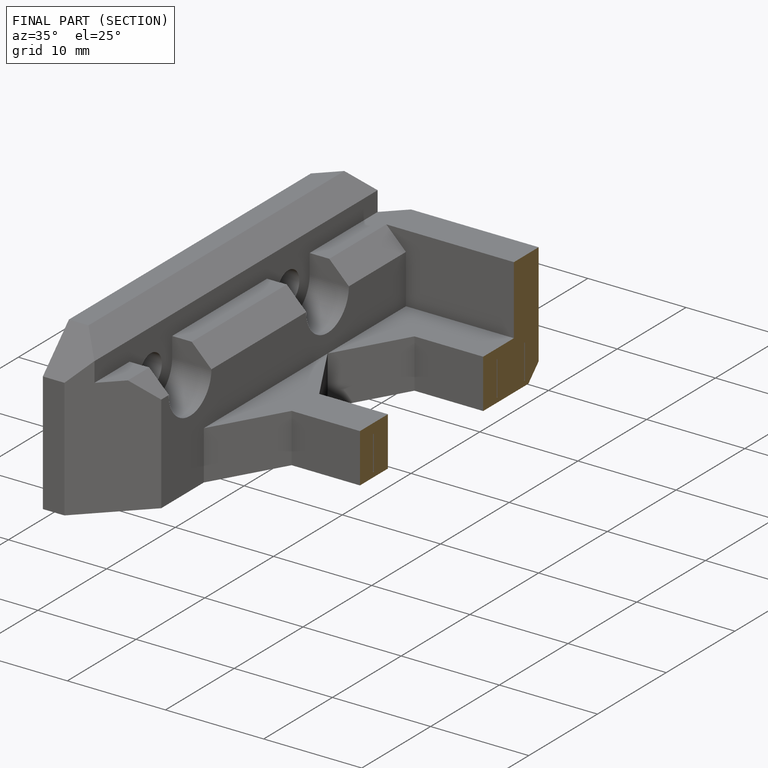
[diagram: finished part — half-section view (interior)]
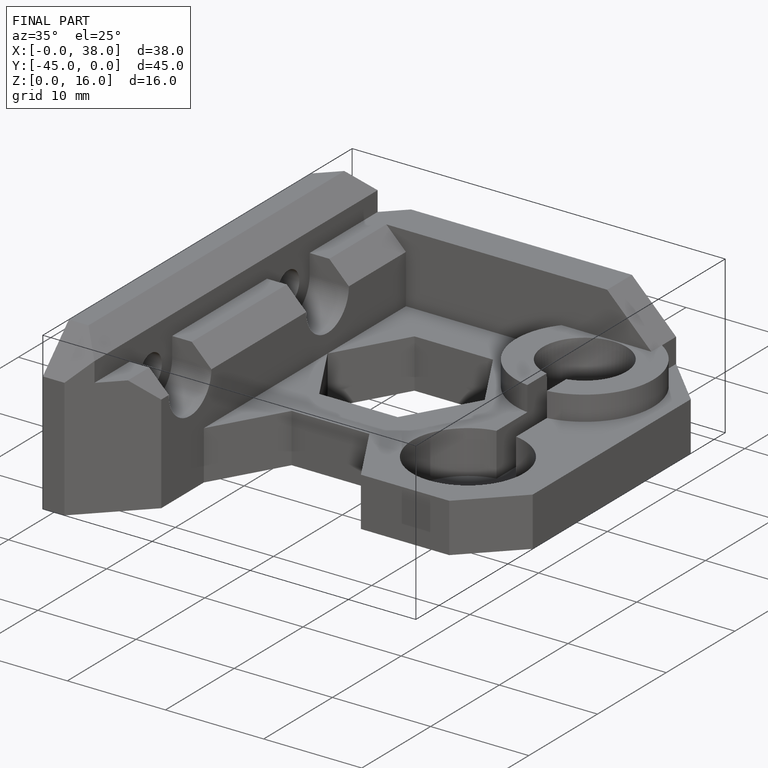
[diagram: finished part — iso view with bounding-box wireframe]
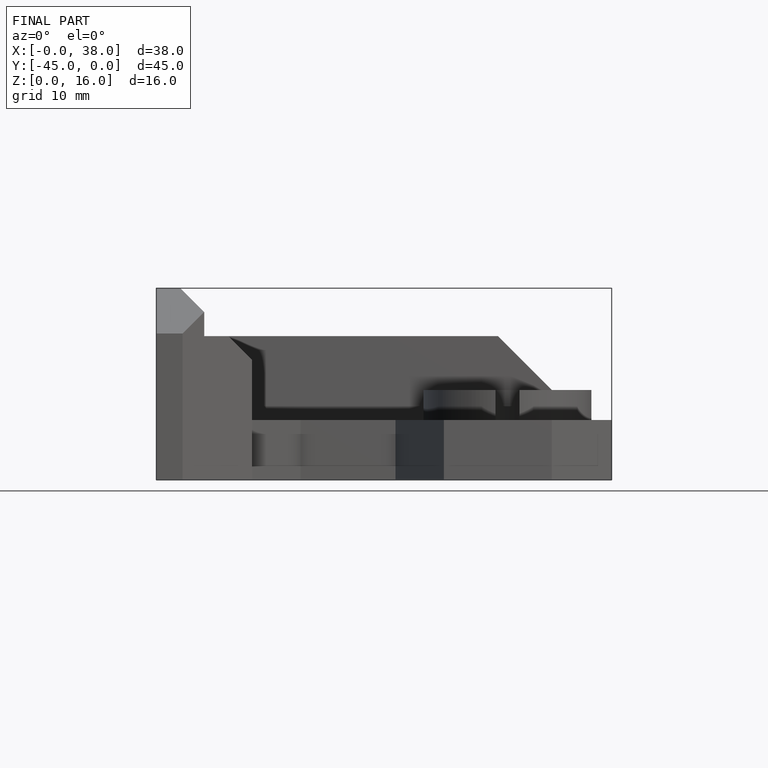
[diagram: finished part — front view with bounding-box wireframe]
